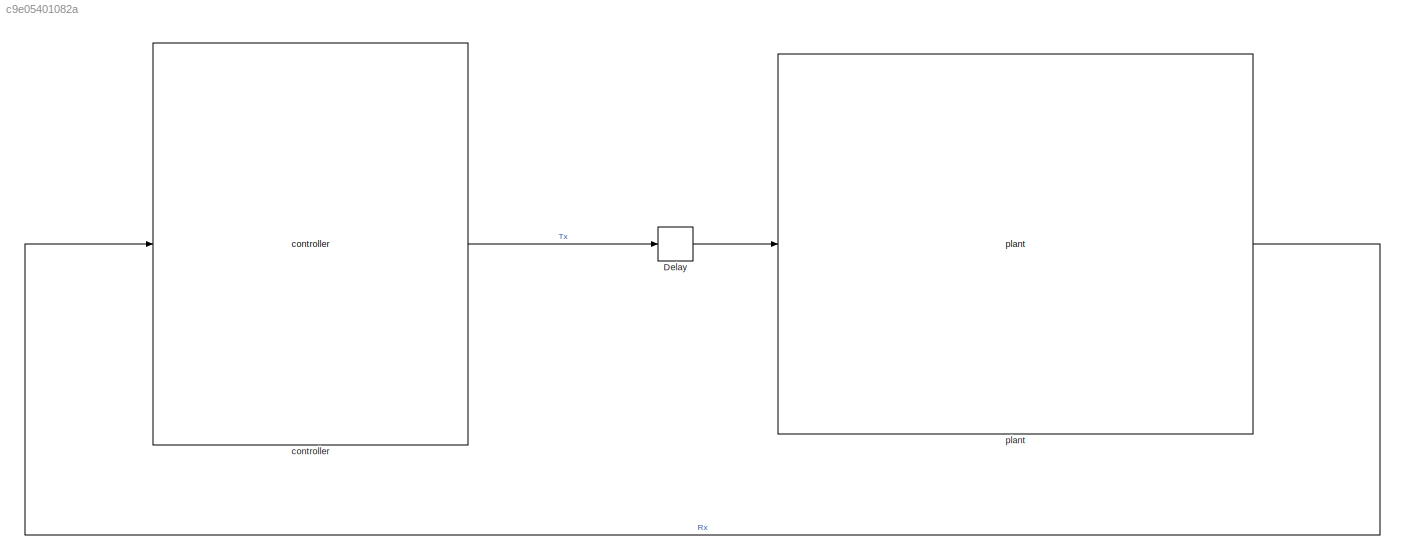
MODEL slx_c9e05401082a
KIND model
CONFIG AbsTol = auto
CONFIG EnableMultiTasking = off
CONFIG FixedStep = 1e-3
CONFIG MaxStep = auto
CONFIG MinStep = auto
CONFIG RelTol = 1e-3
CONFIG SampleTimeConstraint = Unconstrained
CONFIG SolverName = FixedStepAuto
CONFIG StartTime = 0.0
CONFIG StopTime = 30.0
BLOCK [Delay] Delay
  DelayLength = 1
  InputPortMap = u0
BLOCK [Reference] controller  REF=controller_lib/controller  (lib defined in mdl_7825784cbb12, mdl_a3d5ea557988, +4 more)
  SourceBlock = controller_lib/controller
  SourceType = SubSystem
BLOCK [Reference] plant  REF=plant_sim_lib/plant  (lib defined in slx_d5881278eccc)
  SourceBlock = plant_sim_lib/plant
  SourceType = SubSystem
LINE Delay:1 -> plant:1
LINE controller:1 -> Delay:1
LINE plant:1 -> controller:1
